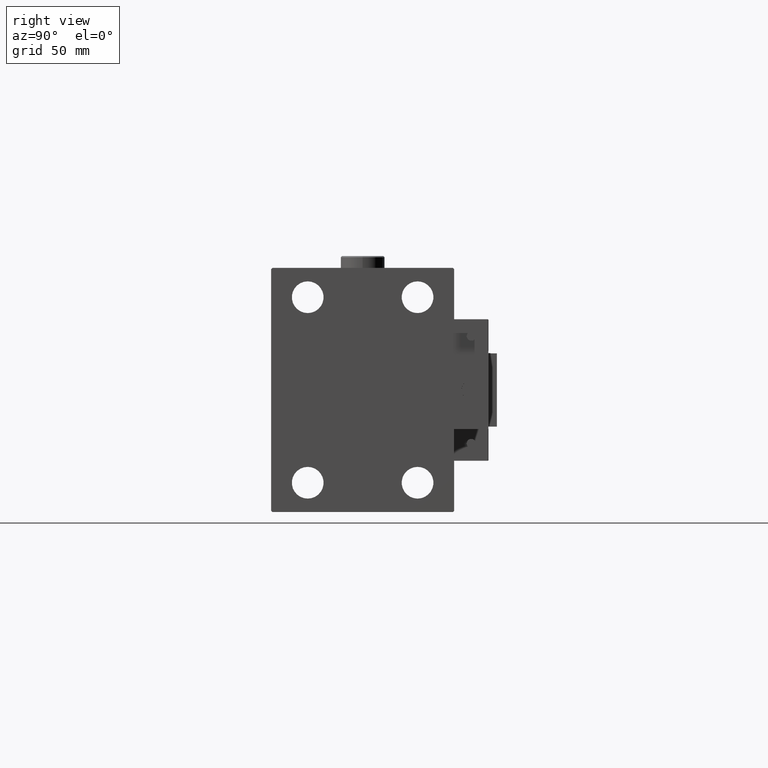
[diagram: clean part render]
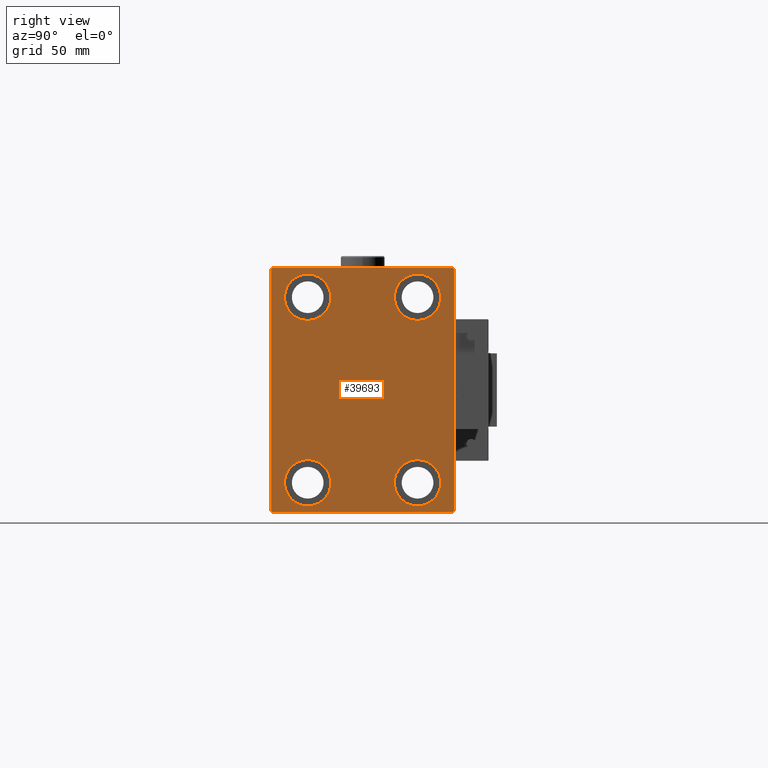
[diagram: same view with one face highlighted and labeled with its STEP entity id]
A machine part, right view. The second image highlights one B-rep face of the part: STEP entity #39693.
In plain terms, the highlighted planar face has unit normal (1, 0, 0).
Its self-contained STEP definition (entity closure, byte-faithful):
#1130 = VERTEX_POINT ( 'NONE', #21510 ) ;
#1348 = AXIS2_PLACEMENT_3D ( 'NONE', #35738, #7080, #52546 ) ;
#1440 = EDGE_CURVE ( 'NONE', #16118, #47316, #16772, .T. ) ;
#1897 = VECTOR ( 'NONE', #17121, 1000.000000000000000 ) ;
#2037 = VERTEX_POINT ( 'NONE', #22356 ) ;
#2055 = EDGE_LOOP ( 'NONE', ( #24630, #31513 ) ) ;
#2090 = CIRCLE ( 'NONE', #47838, 9.500000000000001776 ) ;
#2589 = CIRCLE ( 'NONE', #49216, 9.500000000000001776 ) ;
#2645 = AXIS2_PLACEMENT_3D ( 'NONE', #43907, #6176, #39774 ) ;
#3331 = CARTESIAN_POINT ( 'NONE',  ( 113.0000000000000000, 37.50000000000000711, -49.50000000000000000 ) ) ;
#3517 = ORIENTED_EDGE ( 'NONE', *, *, #43480, .T. ) ;
#3925 = EDGE_CURVE ( 'NONE', #34592, #41718, #31434, .T. ) ;
#4524 = CARTESIAN_POINT ( 'NONE',  ( 113.0000000000000000, -22.49999999999999645, 37.99999999999999289 ) ) ;
#6176 = DIRECTION ( 'NONE',  ( 1.000000000000000000, 0.000000000000000000, 0.000000000000000000 ) ) ;
#6899 = EDGE_CURVE ( 'NONE', #39060, #16988, #2589, .T. ) ;
#7080 = DIRECTION ( 'NONE',  ( -1.000000000000000000, -0.000000000000000000, -0.000000000000000000 ) ) ;
#7771 = DIRECTION ( 'NONE',  ( -1.000000000000000000, -0.000000000000000000, -0.000000000000000000 ) ) ;
#8195 = AXIS2_PLACEMENT_3D ( 'NONE', #42126, #21179, #37993 ) ;
#8244 = VERTEX_POINT ( 'NONE', #30523 ) ;
#8446 = ORIENTED_EDGE ( 'NONE', *, *, #19536, .T. ) ;
#8979 = EDGE_LOOP ( 'NONE', ( #50001, #20665 ) ) ;
#9492 = CIRCLE ( 'NONE', #37630, 9.500000000000001776 ) ;
#9980 = DIRECTION ( 'NONE',  ( -0.000000000000000000, 0.7071067811865474617, -0.7071067811865474617 ) ) ;
#10581 = FACE_OUTER_BOUND ( 'NONE', #29809, .T. ) ;
#10938 = ORIENTED_EDGE ( 'NONE', *, *, #53321, .T. ) ;
#11050 = CARTESIAN_POINT ( 'NONE',  ( 113.0000000000000000, -22.50000000000000711, -37.99999999999999289 ) ) ;
#11120 = FACE_BOUND ( 'NONE', #27765, .T. ) ;
#11144 = DIRECTION ( 'NONE',  ( -1.000000000000000000, -0.000000000000000000, -0.000000000000000000 ) ) ;
#11424 = DIRECTION ( 'NONE',  ( 0.000000000000000000, 0.000000000000000000, 1.000000000000000000 ) ) ;
#11667 = FACE_BOUND ( 'NONE', #2055, .T. ) ;
#12883 = CARTESIAN_POINT ( 'NONE',  ( 113.0000000000000000, 37.49999999999999289, 49.50000000000000000 ) ) ;
#12887 = ORIENTED_EDGE ( 'NONE', *, *, #6899, .T. ) ;
#12971 = DIRECTION ( 'NONE',  ( 0.000000000000000000, 1.000000000000000000, 9.251858538542970348E-17 ) ) ;
#13239 = LINE ( 'NONE', #39135, #31183 ) ;
#13679 = ORIENTED_EDGE ( 'NONE', *, *, #48655, .T. ) ;
#13734 = CARTESIAN_POINT ( 'NONE',  ( 113.0000000000000000, 36.99999999999997868, 50.00000000000000711 ) ) ;
#14064 = EDGE_CURVE ( 'NONE', #34557, #52524, #16134, .T. ) ;
#14247 = DIRECTION ( 'NONE',  ( 0.000000000000000000, -0.7071067811865474617, -0.7071067811865474617 ) ) ;
#14382 = VERTEX_POINT ( 'NONE', #46945 ) ;
#14573 = CARTESIAN_POINT ( 'NONE',  ( 113.0000000000000000, 37.49999999999999289, 50.00000000000000711 ) ) ;
#14579 = EDGE_LOOP ( 'NONE', ( #36578, #12887 ) ) ;
#14805 = VERTEX_POINT ( 'NONE', #3331 ) ;
#16048 = CARTESIAN_POINT ( 'NONE',  ( 113.0000000000000000, -37.50000000000000711, -49.50000000000000711 ) ) ;
#16118 = VERTEX_POINT ( 'NONE', #12883 ) ;
#16134 = CIRCLE ( 'NONE', #8195, 9.500000000000001776 ) ;
#16589 = CIRCLE ( 'NONE', #34214, 9.500000000000001776 ) ;
#16772 = LINE ( 'NONE', #50390, #20795 ) ;
#16988 = VERTEX_POINT ( 'NONE', #37680 ) ;
#17121 = DIRECTION ( 'NONE',  ( 0.000000000000000000, -1.387778780781445676E-16, 1.000000000000000000 ) ) ;
#17876 = DIRECTION ( 'NONE',  ( -1.000000000000000000, -0.000000000000000000, -0.000000000000000000 ) ) ;
#17877 = CARTESIAN_POINT ( 'NONE',  ( 113.0000000000000000, 22.50000000000000355, 28.49999999999998934 ) ) ;
#18453 = CARTESIAN_POINT ( 'NONE',  ( 113.0000000000000000, 37.00000000000000711, -50.00000000000000000 ) ) ;
#18520 = ORIENTED_EDGE ( 'NONE', *, *, #35061, .T. ) ;
#18566 = EDGE_CURVE ( 'NONE', #16988, #39060, #2090, .T. ) ;
#18707 = LINE ( 'NONE', #14573, #44949 ) ;
#19536 = EDGE_CURVE ( 'NONE', #14382, #44016, #49797, .T. ) ;
#20118 = VERTEX_POINT ( 'NONE', #18453 ) ;
#20253 = ORIENTED_EDGE ( 'NONE', *, *, #41838, .T. ) ;
#20630 = EDGE_CURVE ( 'NONE', #30648, #1130, #25002, .T. ) ;
#20665 = ORIENTED_EDGE ( 'NONE', *, *, #14064, .T. ) ;
#20795 = VECTOR ( 'NONE', #44908, 1000.000000000000000 ) ;
#21103 = CARTESIAN_POINT ( 'NONE',  ( 113.0000000000000000, 43.50000000000000711, -43.50000000000000711 ) ) ;
#21179 = DIRECTION ( 'NONE',  ( -1.000000000000000000, -0.000000000000000000, -0.000000000000000000 ) ) ;
#21510 = CARTESIAN_POINT ( 'NONE',  ( 113.0000000000000000, 22.50000000000000355, 47.49999999999999289 ) ) ;
#21570 = ORIENTED_EDGE ( 'NONE', *, *, #3925, .T. ) ;
#22356 = CARTESIAN_POINT ( 'NONE',  ( 113.0000000000000000, -22.50000000000000711, -28.49999999999998934 ) ) ;
#22536 = EDGE_CURVE ( 'NONE', #8244, #2037, #34782, .T. ) ;
#22898 = DIRECTION ( 'NONE',  ( 0.000000000000000000, 0.000000000000000000, 1.000000000000000000 ) ) ;
#23554 = AXIS2_PLACEMENT_3D ( 'NONE', #11050, #43831, #22898 ) ;
#23942 = VECTOR ( 'NONE', #38737, 1000.000000000000114 ) ;
#24570 = DIRECTION ( 'NONE',  ( 0.000000000000000000, 0.000000000000000000, 1.000000000000000000 ) ) ;
#24630 = ORIENTED_EDGE ( 'NONE', *, *, #22536, .T. ) ;
#25002 = CIRCLE ( 'NONE', #40880, 9.500000000000001776 ) ;
#26020 = DIRECTION ( 'NONE',  ( -1.000000000000000000, -0.000000000000000000, -0.000000000000000000 ) ) ;
#27379 = PLANE ( 'NONE',  #2645 ) ;
#27765 = EDGE_LOOP ( 'NONE', ( #34382, #18520 ) ) ;
#27919 = FACE_BOUND ( 'NONE', #14579, .T. ) ;
#28481 = CARTESIAN_POINT ( 'NONE',  ( 113.0000000000000000, 22.49999999999999645, -37.99999999999999289 ) ) ;
#28894 = VECTOR ( 'NONE', #38877, 1000.000000000000000 ) ;
#29284 = EDGE_CURVE ( 'NONE', #44016, #34592, #30612, .T. ) ;
#29655 = CARTESIAN_POINT ( 'NONE',  ( 113.0000000000000000, -43.50000000000000711, 43.50000000000000711 ) ) ;
#29809 = EDGE_LOOP ( 'NONE', ( #20253, #8446, #32741, #21570, #10938, #13679, #3517, #40636 ) ) ;
#29910 = LINE ( 'NONE', #21103, #23942 ) ;
#30523 = CARTESIAN_POINT ( 'NONE',  ( 113.0000000000000000, -22.50000000000000711, -47.49999999999999289 ) ) ;
#30612 = LINE ( 'NONE', #38321, #28894 ) ;
#30648 = VERTEX_POINT ( 'NONE', #17877 ) ;
#31183 = VECTOR ( 'NONE', #12971, 1000.000000000000000 ) ;
#31434 = LINE ( 'NONE', #43021, #33246 ) ;
#31513 = ORIENTED_EDGE ( 'NONE', *, *, #34755, .T. ) ;
#32741 = ORIENTED_EDGE ( 'NONE', *, *, #29284, .T. ) ;
#33246 = VECTOR ( 'NONE', #9980, 1000.000000000000114 ) ;
#33479 = DIRECTION ( 'NONE',  ( 0.000000000000000000, 0.000000000000000000, 1.000000000000000000 ) ) ;
#34175 = CARTESIAN_POINT ( 'NONE',  ( 113.0000000000000000, -22.49999999999999645, 28.49999999999998934 ) ) ;
#34214 = AXIS2_PLACEMENT_3D ( 'NONE', #4524, #26020, #34296 ) ;
#34296 = DIRECTION ( 'NONE',  ( 0.000000000000000000, 0.000000000000000000, 1.000000000000000000 ) ) ;
#34382 = ORIENTED_EDGE ( 'NONE', *, *, #20630, .T. ) ;
#34557 = VERTEX_POINT ( 'NONE', #49387 ) ;
#34592 = VERTEX_POINT ( 'NONE', #16048 ) ;
#34755 = EDGE_CURVE ( 'NONE', #2037, #8244, #44682, .T. ) ;
#34782 = CIRCLE ( 'NONE', #1348, 9.500000000000001776 ) ;
#35061 = EDGE_CURVE ( 'NONE', #1130, #30648, #9492, .T. ) ;
#35738 = CARTESIAN_POINT ( 'NONE',  ( 113.0000000000000000, -22.50000000000000711, -37.99999999999999289 ) ) ;
#36047 = CARTESIAN_POINT ( 'NONE',  ( 113.0000000000000000, 22.49999999999999645, -28.49999999999998934 ) ) ;
#36578 = ORIENTED_EDGE ( 'NONE', *, *, #18566, .T. ) ;
#36693 = EDGE_CURVE ( 'NONE', #52524, #34557, #16589, .T. ) ;
#37630 = AXIS2_PLACEMENT_3D ( 'NONE', #37992, #17876, #42125 ) ;
#37680 = CARTESIAN_POINT ( 'NONE',  ( 113.0000000000000000, 22.49999999999999645, -47.49999999999999289 ) ) ;
#37992 = CARTESIAN_POINT ( 'NONE',  ( 113.0000000000000000, 22.50000000000000355, 37.99999999999999289 ) ) ;
#37993 = DIRECTION ( 'NONE',  ( 0.000000000000000000, 0.000000000000000000, 1.000000000000000000 ) ) ;
#38321 = CARTESIAN_POINT ( 'NONE',  ( 113.0000000000000000, -37.50000000000000711, 49.99999999999999289 ) ) ;
#38419 = DIRECTION ( 'NONE',  ( -1.000000000000000000, -0.000000000000000000, -0.000000000000000000 ) ) ;
#38737 = DIRECTION ( 'NONE',  ( -0.000000000000000000, 0.7071067811865474617, 0.7071067811865474617 ) ) ;
#38877 = DIRECTION ( 'NONE',  ( 0.000000000000000000, 0.000000000000000000, -1.000000000000000000 ) ) ;
#39060 = VERTEX_POINT ( 'NONE', #36047 ) ;
#39135 = CARTESIAN_POINT ( 'NONE',  ( 113.0000000000000000, -37.50000000000000711, -50.00000000000000711 ) ) ;
#39693 = ADVANCED_FACE ( 'NONE', ( #27919, #49399, #11120, #11667, #10581 ), #27379, .T. ) ;
#39774 = DIRECTION ( 'NONE',  ( 0.000000000000000000, 0.000000000000000000, -1.000000000000000000 ) ) ;
#40636 = ORIENTED_EDGE ( 'NONE', *, *, #1440, .T. ) ;
#40880 = AXIS2_PLACEMENT_3D ( 'NONE', #45879, #38419, #33479 ) ;
#41110 = CARTESIAN_POINT ( 'NONE',  ( 113.0000000000000000, 22.49999999999999645, -37.99999999999999289 ) ) ;
#41718 = VERTEX_POINT ( 'NONE', #50403 ) ;
#41735 = CARTESIAN_POINT ( 'NONE',  ( 113.0000000000000000, -37.50000000000000711, 49.49999999999999289 ) ) ;
#41838 = EDGE_CURVE ( 'NONE', #47316, #14382, #18707, .T. ) ;
#42125 = DIRECTION ( 'NONE',  ( 0.000000000000000000, 0.000000000000000000, 1.000000000000000000 ) ) ;
#42126 = CARTESIAN_POINT ( 'NONE',  ( 113.0000000000000000, -22.49999999999999645, 37.99999999999999289 ) ) ;
#42200 = LINE ( 'NONE', #46066, #1897 ) ;
#43021 = CARTESIAN_POINT ( 'NONE',  ( 113.0000000000000000, -43.50000000000000711, -43.50000000000000711 ) ) ;
#43480 = EDGE_CURVE ( 'NONE', #14805, #16118, #42200, .T. ) ;
#43831 = DIRECTION ( 'NONE',  ( -1.000000000000000000, -0.000000000000000000, -0.000000000000000000 ) ) ;
#43907 = CARTESIAN_POINT ( 'NONE',  ( 113.0000000000000000, 0.000000000000000000, 0.000000000000000000 ) ) ;
#44016 = VERTEX_POINT ( 'NONE', #41735 ) ;
#44682 = CIRCLE ( 'NONE', #23554, 9.500000000000001776 ) ;
#44908 = DIRECTION ( 'NONE',  ( -0.000000000000000000, -0.7071067811865524577, 0.7071067811865426878 ) ) ;
#44949 = VECTOR ( 'NONE', #46807, 1000.000000000000000 ) ;
#45879 = CARTESIAN_POINT ( 'NONE',  ( 113.0000000000000000, 22.50000000000000355, 37.99999999999999289 ) ) ;
#46066 = CARTESIAN_POINT ( 'NONE',  ( 113.0000000000000000, 37.50000000000000711, -50.00000000000000000 ) ) ;
#46807 = DIRECTION ( 'NONE',  ( 0.000000000000000000, -1.000000000000000000, -1.850371707708594316E-16 ) ) ;
#46945 = CARTESIAN_POINT ( 'NONE',  ( 113.0000000000000000, -37.00000000000000711, 49.99999999999999289 ) ) ;
#46952 = VECTOR ( 'NONE', #14247, 1000.000000000000114 ) ;
#47316 = VERTEX_POINT ( 'NONE', #13734 ) ;
#47838 = AXIS2_PLACEMENT_3D ( 'NONE', #28481, #11144, #11424 ) ;
#48655 = EDGE_CURVE ( 'NONE', #20118, #14805, #29910, .T. ) ;
#49216 = AXIS2_PLACEMENT_3D ( 'NONE', #41110, #7771, #24570 ) ;
#49387 = CARTESIAN_POINT ( 'NONE',  ( 113.0000000000000000, -22.49999999999999645, 47.49999999999999289 ) ) ;
#49399 = FACE_BOUND ( 'NONE', #8979, .T. ) ;
#49797 = LINE ( 'NONE', #29655, #46952 ) ;
#50001 = ORIENTED_EDGE ( 'NONE', *, *, #36693, .T. ) ;
#50390 = CARTESIAN_POINT ( 'NONE',  ( 113.0000000000000000, 43.49999999999972999, 43.50000000000033396 ) ) ;
#50403 = CARTESIAN_POINT ( 'NONE',  ( 113.0000000000000000, -37.00000000000000711, -50.00000000000000711 ) ) ;
#52524 = VERTEX_POINT ( 'NONE', #34175 ) ;
#52546 = DIRECTION ( 'NONE',  ( 0.000000000000000000, 0.000000000000000000, 1.000000000000000000 ) ) ;
#53321 = EDGE_CURVE ( 'NONE', #41718, #20118, #13239, .T. ) ;